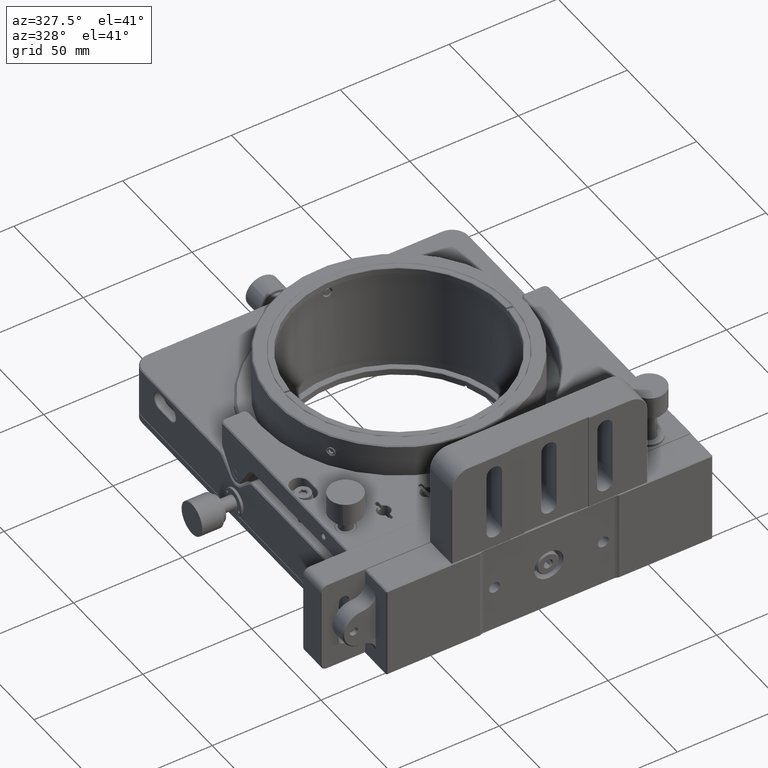
[diagram: clean part render]
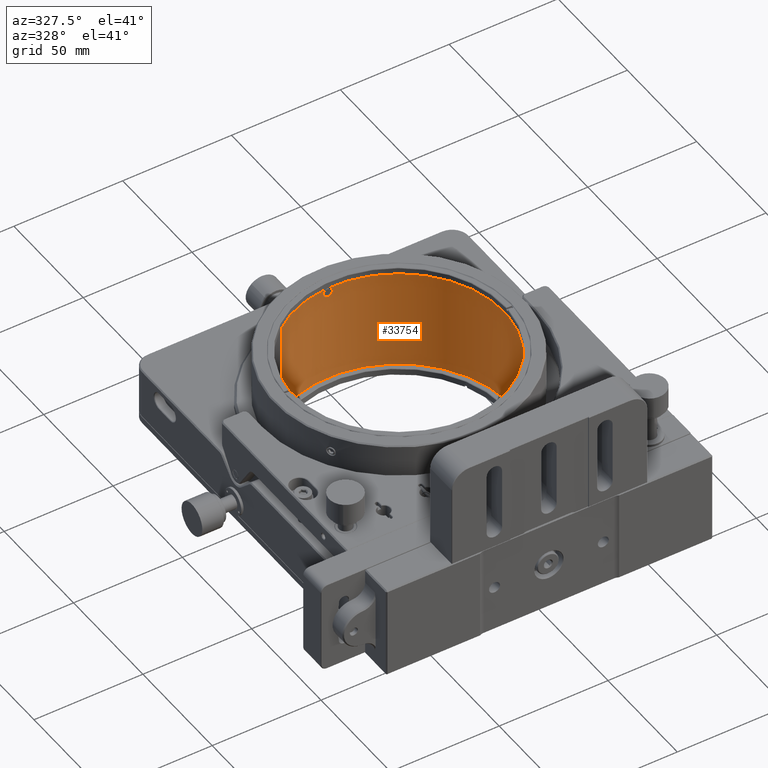
[diagram: same view with one face highlighted and labeled with its STEP entity id]
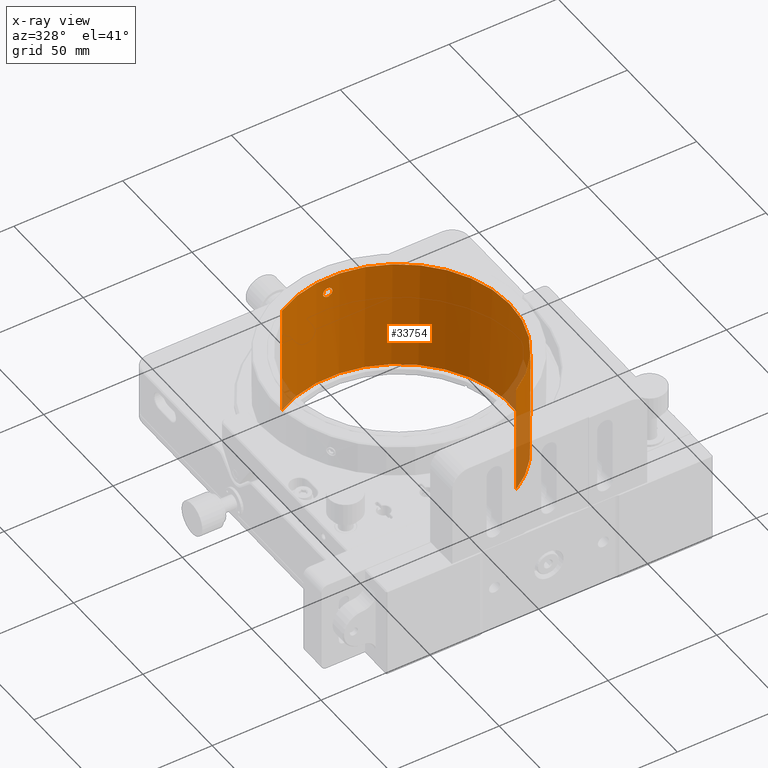
[diagram: x-ray of the same camera — body ghosted, the highlighted face saturated]
A machine part, auxiliary view. The second image highlights one B-rep face of the part: STEP entity #33754.
The next image is the same camera in x-ray: the body ghosted, the highlighted face saturated — about 6% of this face is hidden behind the body in this view.
In plain terms, the highlighted cylindrical surface (partial cylindrical patch) has radius 51.027 mm, axis along (0, 0, 1).
Its self-contained STEP definition (entity closure, byte-faithful):
#729 = CARTESIAN_POINT ( 'NONE',  ( -1.225075004603644269, 151.9124216428591012, 21.13507401631662574 ) ) ;
#924 = EDGE_CURVE ( 'NONE', #72003, #42669, #5426, .T. ) ;
#1143 = CARTESIAN_POINT ( 'NONE',  ( -1.560609049068339305, 151.9031578788775505, 21.38271407773588351 ) ) ;
#1687 = CARTESIAN_POINT ( 'NONE',  ( 1.973391227907845158, 151.8888267766735112, 22.99771387052114946 ) ) ;
#3187 = CARTESIAN_POINT ( 'NONE',  ( 43.39634477707432580, 74.05690325389139161, 24.31962608288439043 ) ) ;
#3453 = CARTESIAN_POINT ( 'NONE',  ( -0.4392877553041670269, 151.9258913470754067, 20.85010165519898351 ) ) ;
#3689 = CARTESIAN_POINT ( 'NONE',  ( 43.22883398719062598, 73.78864506985598837, 22.30714620635962220 ) ) ;
#3994 = CARTESIAN_POINT ( 'NONE',  ( 43.72902487112172309, 74.60283756303873304, 24.86666468983749567 ) ) ;
#4492 = CARTESIAN_POINT ( 'NONE',  ( 44.89939160248334815, 76.65536661550474662, 21.29343005839096747 ) ) ;
#4631 = ORIENTED_EDGE ( 'NONE', *, *, #44164, .F. ) ;
#5282 = CARTESIAN_POINT ( 'NONE',  ( 43.17092368380934886, 73.69657967668941012, 22.99771387052114946 ) ) ;
#5426 = B_SPLINE_CURVE_WITH_KNOTS ( 'NONE', 3,
 ( #5282, #23575, #54077, #42292, #3689, #17069, #79689, #66676, #60180, #65482, #67081, #53678, #10180, #73581, #54478, #28484, #4492, #11382, #29285, #47193, #34997, #22770, #73188, #41095 ),
 .UNSPECIFIED., .F., .F.,
 ( 4, 2, 2, 2, 2, 2, 2, 2, 2, 2, 2, 4 ),
 ( 0.000000000000000000, 0.06249999999999938938, 0.1249999999999987788, 0.2499999999999990008, 0.3749999999999992228, 0.4999999999999994449, 0.6249999999999996669, 0.6874999999999993339, 0.7187499999999992228, 0.7499999999999990008, 0.8749999999999995559, 1.000000000000000000 ),
 .UNSPECIFIED. ) ;
#6105 = CARTESIAN_POINT ( 'NONE',  ( -4.537995970120020056E-14, 100.9000000000000057, 30.50000000000000000 ) ) ;
#6842 = CARTESIAN_POINT ( 'NONE',  ( 0.9193814273949958427, 151.9193841844292194, 21.12253217799785432 ) ) ;
#6994 = CARTESIAN_POINT ( 'NONE',  ( 0.9094982824115720454, 151.9190276395913486, 24.86666468980186195 ) ) ;
#7239 = CARTESIAN_POINT ( 'NONE',  ( -1.453227384632277408, 151.9063304344695382, 21.29343005825410984 ) ) ;
#7392 = CARTESIAN_POINT ( 'NONE',  ( -0.2249030237746960648, 151.9265515436393059, 25.15000845532489393 ) ) ;
#7786 = CARTESIAN_POINT ( 'NONE',  ( 0.1220393724718473738, 151.9276089218764128, 25.14996602844389528 ) ) ;
#8187 = CARTESIAN_POINT ( 'NONE',  ( -0.2960037445941812173, 151.9261884224226549, 25.14660888067056277 ) ) ;
#8441 = CARTESIAN_POINT ( 'NONE',  ( 1.548633435122426905, 151.9038854167141324, 21.68040567840430199 ) ) ;
#9289 = CARTESIAN_POINT ( 'NONE',  ( 45.28878533585400135, 77.39083898130479611, 23.00000000000000000 ) ) ;
#10087 = CARTESIAN_POINT ( 'NONE',  ( 44.90374167477740741, 76.66266011369569355, 24.72191604971199297 ) ) ;
#10119 = ORIENTED_EDGE ( 'NONE', *, *, #43730, .T. ) ;
#10180 = CARTESIAN_POINT ( 'NONE',  ( 44.54265160899161202, 76.00472150321422760, 20.90498477664004184 ) ) ;
#10488 = CARTESIAN_POINT ( 'NONE',  ( 44.30274141615881689, 75.58149596009420179, 25.15000845532477314 ) ) ;
#11346 = CIRCLE ( 'NONE', #12681, 51.02700000000000102 ) ;
#11382 = CARTESIAN_POINT ( 'NONE',  ( 44.95033492092955640, 76.74994814254023368, 21.38271407782296407 ) ) ;
#12346 = CARTESIAN_POINT ( 'NONE',  ( 1.973391227907845158, 151.8888267766735112, 22.99771387052114946 ) ) ;
#12515 = LINE ( 'NONE', #54816, #32143 ) ;
#12681 = AXIS2_PLACEMENT_3D ( 'NONE', #6105, #80529, #24804 ) ;
#13967 = FACE_BOUND ( 'NONE', #25151, .T. ) ;
#14141 = CARTESIAN_POINT ( 'NONE',  ( 1.864705106977725180, 151.8929458739574727, 22.30714620644259583 ) ) ;
#14286 = CARTESIAN_POINT ( 'NONE',  ( -0.6401795775956812262, 151.9233019747764217, 25.10234346734543465 ) ) ;
#14365 = FACE_OUTER_BOUND ( 'NONE', #33185, .T. ) ;
#14682 = CARTESIAN_POINT ( 'NONE',  ( -2.284862004078474840, 151.8758191167370057, 23.00000000000000000 ) ) ;
#14706 = B_SPLINE_CURVE_WITH_KNOTS ( 'NONE', 3,
 ( #9289, #33699, #14977, #65784, #47104, #10087, #52378, #34906, #40205, #53189, #28389, #10488, #59689, #71487, #34100, #3994, #58483, #58881, #3187, #35304, #28796, #22281, #41403 ),
 .UNSPECIFIED., .F., .F.,
 ( 4, 2, 2, 2, 1, 2, 2, 2, 2, 2, 2, 4 ),
 ( 0.000000000000000000, 0.1249999999999981959, 0.2499999999999963918, 0.3749999999999945599, 0.4374999999999968359, 0.4687499999999946709, 0.4999999999999925615, 0.6249999999999948930, 0.6874999999999957812, 0.7499999999999965583, 0.8749999999999982236, 1.000000000000000000 ),
 .UNSPECIFIED. ) ;
#14948 = AXIS2_PLACEMENT_3D ( 'NONE', #38774, #52568, #26166 ) ;
#14977 = CARTESIAN_POINT ( 'NONE',  ( 45.26396777998308352, 77.34284352060086576, 23.55907042119335770 ) ) ;
#15282 = VECTOR ( 'NONE', #71960, 1000.000000000000000 ) ;
#17069 = CARTESIAN_POINT ( 'NONE',  ( 43.31489437566226286, 73.92619132590731112, 21.91267439846382459 ) ) ;
#17985 = EDGE_CURVE ( 'NONE', #70449, #79014, #54693, .T. ) ;
#18368 = CARTESIAN_POINT ( 'NONE',  ( -2.230887937791088849, 151.8783242132500675, 23.55907042130809259 ) ) ;
#19576 = CARTESIAN_POINT ( 'NONE',  ( 1.143026850048610488, 151.9143299283168460, 24.70924249621172208 ) ) ;
#19977 = CARTESIAN_POINT ( 'NONE',  ( 0.7870855015820515943, 151.9210906593937125, 24.93275921833743070 ) ) ;
#22138 = CARTESIAN_POINT ( 'NONE',  ( 1.959424137350463946, 151.8893728917647366, 22.71841132062504443 ) ) ;
#22281 = CARTESIAN_POINT ( 'NONE',  ( 43.17080104134244323, 73.69638504717168814, 23.28436733235585621 ) ) ;
#22770 = CARTESIAN_POINT ( 'NONE',  ( 45.26317466295814995, 77.34132792934681788, 22.43672449040419892 ) ) ;
#22853 = DIRECTION ( 'NONE',  ( 0.000000000000000000, 1.000000000000000000, 6.799237564335771785E-17 ) ) ;
#23141 = LINE ( 'NONE', #54051, #15282 ) ;
#23575 = CARTESIAN_POINT ( 'NONE',  ( 43.17098345100095003, 73.69667452523560769, 22.85801941700673368 ) ) ;
#24055 = CARTESIAN_POINT ( 'NONE',  ( -5.051538147524739760E-14, 100.9000000000000057, -20.73250000000000171 ) ) ;
#24308 = DIRECTION ( 'NONE',  ( 7.798222056111458678E-17, 4.534123169250859820E-17, 1.000000000000000000 ) ) ;
#24804 = DIRECTION ( 'NONE',  ( -0.5026430871505260800, 0.8644940294413772097, 0.000000000000000000 ) ) ;
#24881 = CARTESIAN_POINT ( 'NONE',  ( -1.461718775797121284, 151.9064509584800362, 24.72191604960352862 ) ) ;
#25151 = EDGE_LOOP ( 'NONE', ( #46139, #59919 ) ) ;
#25283 = CARTESIAN_POINT ( 'NONE',  ( -0.8398334486594252191, 151.9202550199134407, 25.04101903465282675 ) ) ;
#25530 = CARTESIAN_POINT ( 'NONE',  ( -1.397623927542203770, 151.9078884758632171, 21.25167547665979839 ) ) ;
#25689 = CARTESIAN_POINT ( 'NONE',  ( 1.919414348753885502, 151.8910031277171981, 23.55983268686201981 ) ) ;
#25935 = CARTESIAN_POINT ( 'NONE',  ( -1.613235670377356490, 151.9015157121540369, 21.43110130252113876 ) ) ;
#26088 = CARTESIAN_POINT ( 'NONE',  ( 1.702089472219862287, 151.8987200117965983, 24.08838718150617098 ) ) ;
#26166 = DIRECTION ( 'NONE',  ( -0.5026430871505260800, 0.8644940294413772097, 0.000000000000000000 ) ) ;
#26554 = FACE_BOUND ( 'NONE', #44950, .T. ) ;
#27759 = ORIENTED_EDGE ( 'NONE', *, *, #61029, .T. ) ;
#28248 = CARTESIAN_POINT ( 'NONE',  ( -0.7113821922766117023, 151.9227070936939583, 20.90498477683910039 ) ) ;
#28389 = CARTESIAN_POINT ( 'NONE',  ( 44.33797730437289175, 75.64325255116362712, 25.14660888067053435 ) ) ;
#28440 = CARTESIAN_POINT ( 'NONE',  ( 25.64836880802985419, 56.78746315969479497, -20.73250000000000171 ) ) ;
#28484 = CARTESIAN_POINT ( 'NONE',  ( 44.87293917737406446, 76.60643358844532713, 21.25167547680909763 ) ) ;
#28796 = CARTESIAN_POINT ( 'NONE',  ( 43.19979689868092976, 73.74223684973709680, 23.55983268691016264 ) ) ;
#28960 = VERTEX_POINT ( 'NONE', #58058 ) ;
#29095 = ORIENTED_EDGE ( 'NONE', *, *, #924, .T. ) ;
#29285 = CARTESIAN_POINT ( 'NONE',  ( 44.97522607336357936, 76.79634521664574720, 21.43110130236726718 ) ) ;
#29668 = EDGE_CURVE ( 'NONE', #28960, #75754, #48411, .T. ) ;
#29855 = CARTESIAN_POINT ( 'NONE',  ( -2.284862426429576487, 151.8758190978064420, 22.71927544666506193 ) ) ;
#31644 = CARTESIAN_POINT ( 'NONE',  ( 1.702556360649515321, 151.8987032286133569, 21.91267439829789865 ) ) ;
#32143 = VECTOR ( 'NONE', #24308, 1000.000000000000000 ) ;
#32447 = CARTESIAN_POINT ( 'NONE',  ( -25.64836880802990038, 145.0125368403050174, 30.50000000000000000 ) ) ;
#33185 = EDGE_LOOP ( 'NONE', ( #47968, #79297, #10119, #4631, #51021 ) ) ;
#33699 = CARTESIAN_POINT ( 'NONE',  ( 45.28878513817502949, 77.39083860048997110, 23.28490125704927038 ) ) ;
#33754 = ADVANCED_FACE ( 'NONE', ( #14365, #26554, #13967 ), #46478, .F. ) ;
#34100 = CARTESIAN_POINT ( 'NONE',  ( 43.79201788906981818, 74.70781863104492970, 24.93275921834949216 ) ) ;
#34354 = CARTESIAN_POINT ( 'NONE',  ( 0.3975215664845881403, 151.9261188154811180, 20.90438481999493092 ) ) ;
#34906 = CARTESIAN_POINT ( 'NONE',  ( 44.60475367909771904, 76.11718959146227803, 25.04101903465287293 ) ) ;
#34997 = CARTESIAN_POINT ( 'NONE',  ( 45.16470739963093450, 77.15310092227295513, 21.91893491970420271 ) ) ;
#35304 = CARTESIAN_POINT ( 'NONE',  ( 43.31514235459208351, 73.92658727163946253, 24.08838718145803526 ) ) ;
#35844 = CARTESIAN_POINT ( 'NONE',  ( -5.051538147524739760E-14, 100.9000000000000057, -20.73250000000000171 ) ) ;
#37503 = CARTESIAN_POINT ( 'NONE',  ( 1.548631309832676939, 151.9038853813889318, 24.31962608292572625 ) ) ;
#38774 = CARTESIAN_POINT ( 'NONE',  ( -4.962999072178089524E-14, 100.9000000000000057, -24.00000000000000000 ) ) ;
#38874 = B_SPLINE_CURVE_WITH_KNOTS ( 'NONE', 3,
 ( #64143, #62946, #22138, #56841, #14141, #31644, #8441, #69436, #6842, #34354, #59145, #3453, #28248, #46956, #729, #25530, #7239, #1143, #25935, #75569, #73751, #53446, #29855, #72147 ),
 .UNSPECIFIED., .F., .F.,
 ( 4, 2, 2, 2, 2, 2, 2, 2, 2, 2, 2, 4 ),
 ( 0.000000000000000000, 0.06250000000000052736, 0.1250000000000010825, 0.2500000000000009437, 0.3750000000000008327, 0.5000000000000006661, 0.6250000000000004441, 0.6875000000000005551, 0.7187500000000005551, 0.7500000000000004441, 0.8750000000000002220, 1.000000000000000000 ),
 .UNSPECIFIED. ) ;
#40205 = CARTESIAN_POINT ( 'NONE',  ( 44.50756548385256650, 75.94276078967556032, 25.10234346734548794 ) ) ;
#40348 = DIRECTION ( 'NONE',  ( 0.000000000000000000, 1.000000000000000000, 6.799237564335771785E-17 ) ) ;
#41095 = CARTESIAN_POINT ( 'NONE',  ( 45.28878533585400135, 77.39083898130479611, 23.00000000000000000 ) ) ;
#41403 = CARTESIAN_POINT ( 'NONE',  ( 43.17092368380934886, 73.69657967668941012, 22.99771387052114946 ) ) ;
#42292 = CARTESIAN_POINT ( 'NONE',  ( 43.20777188524432688, 73.75513051130751307, 22.43954606825862896 ) ) ;
#42669 = VERTEX_POINT ( 'NONE', #79905 ) ;
#42930 = VERTEX_POINT ( 'NONE', #65209 ) ;
#43599 = CARTESIAN_POINT ( 'NONE',  ( -0.4344796164428439966, 151.9251972127525221, 25.13299273706963533 ) ) ;
#43730 = EDGE_CURVE ( 'NONE', #78754, #44544, #11346, .T. ) ;
#44164 = EDGE_CURVE ( 'NONE', #42930, #44544, #12515, .T. ) ;
#44544 = VERTEX_POINT ( 'NONE', #32447 ) ;
#44950 = EDGE_LOOP ( 'NONE', ( #27759, #29095 ) ) ;
#46139 = ORIENTED_EDGE ( 'NONE', *, *, #17985, .T. ) ;
#46478 = CYLINDRICAL_SURFACE ( 'NONE', #14948, 51.02700000000000102 ) ;
#46956 = CARTESIAN_POINT ( 'NONE',  ( -1.102390862857785869, 151.9152571010240820, 21.06888942200750492 ) ) ;
#47104 = CARTESIAN_POINT ( 'NONE',  ( 45.09219647389394936, 77.01509936551704527, 24.31840035200799477 ) ) ;
#47193 = CARTESIAN_POINT ( 'NONE',  ( 45.09085178104315617, 77.01259120573104155, 21.67889669881794035 ) ) ;
#47641 = DIRECTION ( 'NONE',  ( -4.224752987961655057E-18, 6.799237564335770553E-17, -1.000000000000000000 ) ) ;
#47968 = ORIENTED_EDGE ( 'NONE', *, *, #29668, .T. ) ;
#48411 = CIRCLE ( 'NONE', #49674, 51.02700000000000102 ) ;
#49287 = CARTESIAN_POINT ( 'NONE',  ( -2.284862004078474840, 151.8758191167370057, 23.00000000000000000 ) ) ;
#49674 = AXIS2_PLACEMENT_3D ( 'NONE', #24055, #54963, #22853 ) ;
#49694 = CARTESIAN_POINT ( 'NONE',  ( -1.231070340996178292, 151.9128145556535117, 24.87746995197642974 ) ) ;
#50973 = EDGE_CURVE ( 'NONE', #79014, #70449, #38874, .T. ) ;
#51021 = ORIENTED_EDGE ( 'NONE', *, *, #64352, .T. ) ;
#52378 = CARTESIAN_POINT ( 'NONE',  ( 44.79392849431284418, 76.45973091145610567, 24.87746995197636579 ) ) ;
#52568 = DIRECTION ( 'NONE',  ( 7.798222056111458678E-17, 4.534123169250859820E-17, 1.000000000000000000 ) ) ;
#53189 = CARTESIAN_POINT ( 'NONE',  ( 44.40635682752352409, 75.76367177879708947, 25.13299273706963177 ) ) ;
#53446 = CARTESIAN_POINT ( 'NONE',  ( -2.229178838626435510, 151.8783951493904851, 22.43672448957526910 ) ) ;
#53678 = CARTESIAN_POINT ( 'NONE',  ( 44.40936203505800250, 75.76748868229134359, 20.85010165519907943 ) ) ;
#54051 = CARTESIAN_POINT ( 'NONE',  ( 25.64836880802980090, 56.78746315969479497, -24.00000000000000000 ) ) ;
#54077 = CARTESIAN_POINT ( 'NONE',  ( 43.17838017864947631, 73.70840247441375936, 22.71841132048996670 ) ) ;
#54478 = CARTESIAN_POINT ( 'NONE',  ( 44.79059055368345810, 76.45473525428664630, 21.13507401646591433 ) ) ;
#54693 = B_SPLINE_CURVE_WITH_KNOTS ( 'NONE', 3,
 ( #49287, #74092, #18368, #67986, #61877, #24881, #49694, #25283, #14286, #43599, #8187, #7392, #7786, #62292, #19977, #6994, #19576, #57396, #37503, #26088, #25689, #69991, #1687 ),
 .UNSPECIFIED., .F., .F.,
 ( 4, 2, 2, 2, 1, 2, 2, 2, 2, 2, 2, 4 ),
 ( 0.000000000000000000, 0.1249999999999991673, 0.2499999999999983347, 0.3749999999999975020, 0.4374999999999970579, 0.4687499999999969469, 0.4999999999999967804, 0.6249999999999964473, 0.6874999999999966693, 0.7499999999999967804, 0.8749999999999983347, 1.000000000000000000 ),
 .UNSPECIFIED. ) ;
#54816 = CARTESIAN_POINT ( 'NONE',  ( -25.64836880802990038, 145.0125368403050174, -24.00000000000000000 ) ) ;
#54963 = DIRECTION ( 'NONE',  ( -4.224752987961655057E-18, 6.799237564335770553E-17, -1.000000000000000000 ) ) ;
#56841 = CARTESIAN_POINT ( 'NONE',  ( 1.904260617066054317, 151.8914628378883265, 22.43954606838195431 ) ) ;
#57396 = CARTESIAN_POINT ( 'NONE',  ( 1.249284241257106132, 151.9118023732494578, 24.62159191896192922 ) ) ;
#57739 = CIRCLE ( 'NONE', #75990, 51.02700000000000102 ) ;
#57820 = CARTESIAN_POINT ( 'NONE',  ( 43.17092368380934886, 73.69657967668941012, 22.99771387052114946 ) ) ;
#58058 = CARTESIAN_POINT ( 'NONE',  ( 46.20322437662029813, 122.5567953816733962, -20.73250000000000171 ) ) ;
#58483 = CARTESIAN_POINT ( 'NONE',  ( 43.60819224993003473, 74.40294474647700440, 24.70924249620030011 ) ) ;
#58881 = CARTESIAN_POINT ( 'NONE',  ( 43.55287462743768145, 74.31218692390055480, 24.62159191898260602 ) ) ;
#59145 = CARTESIAN_POINT ( 'NONE',  ( 0.1258024754637194764, 151.9276271761941643, 20.84989870552271185 ) ) ;
#59689 = CARTESIAN_POINT ( 'NONE',  ( 44.13018593463027628, 75.28050634249017037, 25.14996602844392370 ) ) ;
#59919 = ORIENTED_EDGE ( 'NONE', *, *, #50973, .T. ) ;
#60180 = CARTESIAN_POINT ( 'NONE',  ( 43.72439207545860285, 74.59410023589789773, 21.12253217799792893 ) ) ;
#61029 = EDGE_CURVE ( 'NONE', #42669, #72003, #14706, .T. ) ;
#61877 = CARTESIAN_POINT ( 'NONE',  ( -1.861167520513018037, 151.8934379760761999, 24.31840035211647688 ) ) ;
#62292 = CARTESIAN_POINT ( 'NONE',  ( 0.4021501219255490533, 151.9260607035554926, 25.09370195289201178 ) ) ;
#62946 = CARTESIAN_POINT ( 'NONE',  ( 1.973279203058417419, 151.8888311123068036, 22.85801941699126871 ) ) ;
#64048 = CARTESIAN_POINT ( 'NONE',  ( 25.64836880802985419, 56.78746315969479497, 30.50000000000000000 ) ) ;
#64143 = CARTESIAN_POINT ( 'NONE',  ( 1.973391227907845158, 151.8888267766735112, 22.99771387052114946 ) ) ;
#64352 = EDGE_CURVE ( 'NONE', #42930, #28960, #57739, .T. ) ;
#65209 = CARTESIAN_POINT ( 'NONE',  ( -25.64836880802995367, 145.0125368403050174, -20.73250000000000171 ) ) ;
#65482 = CARTESIAN_POINT ( 'NONE',  ( 43.99115436748503072, 75.04267681712750004, 20.90438481999486697 ) ) ;
#65784 = CARTESIAN_POINT ( 'NONE',  ( 45.16381132862681369, 77.15138852786449775, 24.08581158871922412 ) ) ;
#66676 = CARTESIAN_POINT ( 'NONE',  ( 43.60507672540114754, 74.39732321274864546, 21.27767387195262572 ) ) ;
#67081 = CARTESIAN_POINT ( 'NONE',  ( 44.12832019159905883, 75.27723827212770402, 20.84989870552261593 ) ) ;
#67447 = EDGE_CURVE ( 'NONE', #75754, #78754, #23141, .T. ) ;
#67986 = CARTESIAN_POINT ( 'NONE',  ( -2.015004824953759766, 151.8873136783811617, 24.08581158860449634 ) ) ;
#69436 = CARTESIAN_POINT ( 'NONE',  ( 1.149453003240690885, 151.9144425717955471, 21.27767387190629478 ) ) ;
#69991 = CARTESIAN_POINT ( 'NONE',  ( 1.973621103254017406, 151.8888178799402340, 23.28436733230773470 ) ) ;
#70449 = VERTEX_POINT ( 'NONE', #14682 ) ;
#71487 = CARTESIAN_POINT ( 'NONE',  ( 43.98878976328823143, 75.03869742637394324, 25.09370195286788885 ) ) ;
#71960 = DIRECTION ( 'NONE',  ( 7.798222056111458678E-17, 4.534123169250859820E-17, 1.000000000000000000 ) ) ;
#72003 = VERTEX_POINT ( 'NONE', #57820 ) ;
#72147 = CARTESIAN_POINT ( 'NONE',  ( -2.284862004078474840, 151.8758191167370057, 23.00000000000000000 ) ) ;
#73188 = CARTESIAN_POINT ( 'NONE',  ( 45.28878553063498913, 77.39083935653714263, 22.71927544671305910 ) ) ;
#73581 = CARTESIAN_POINT ( 'NONE',  ( 44.73170406157917967, 76.34706994174771921, 21.06888942210703419 ) ) ;
#73751 = CARTESIAN_POINT ( 'NONE',  ( -2.016935837639188378, 151.8872335014249302, 21.91893492053312897 ) ) ;
#74092 = CARTESIAN_POINT ( 'NONE',  ( -2.284861575443314141, 151.8758191359497403, 23.28490125688292878 ) ) ;
#75569 = CARTESIAN_POINT ( 'NONE',  ( -1.858323043579554357, 151.8935275178137090, 21.67889669820246468 ) ) ;
#75754 = VERTEX_POINT ( 'NONE', #28440 ) ;
#75990 = AXIS2_PLACEMENT_3D ( 'NONE', #35844, #47641, #40348 ) ;
#78754 = VERTEX_POINT ( 'NONE', #64048 ) ;
#79014 = VERTEX_POINT ( 'NONE', #12346 ) ;
#79297 = ORIENTED_EDGE ( 'NONE', *, *, #67447, .T. ) ;
#79689 = CARTESIAN_POINT ( 'NONE',  ( 43.39634374507922132, 74.05690139576735476, 21.68040567835797106 ) ) ;
#79905 = CARTESIAN_POINT ( 'NONE',  ( 45.28878533585400135, 77.39083898130479611, 23.00000000000000000 ) ) ;
#80529 = DIRECTION ( 'NONE',  ( 7.798222056111458678E-17, 4.534123169250859820E-17, 1.000000000000000000 ) ) ;